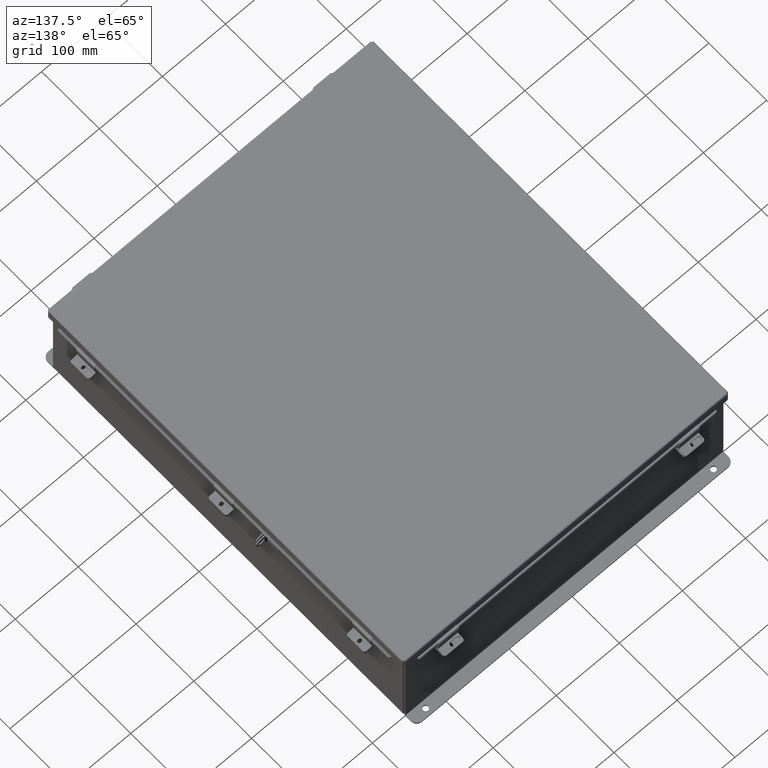
[diagram: clean part render]
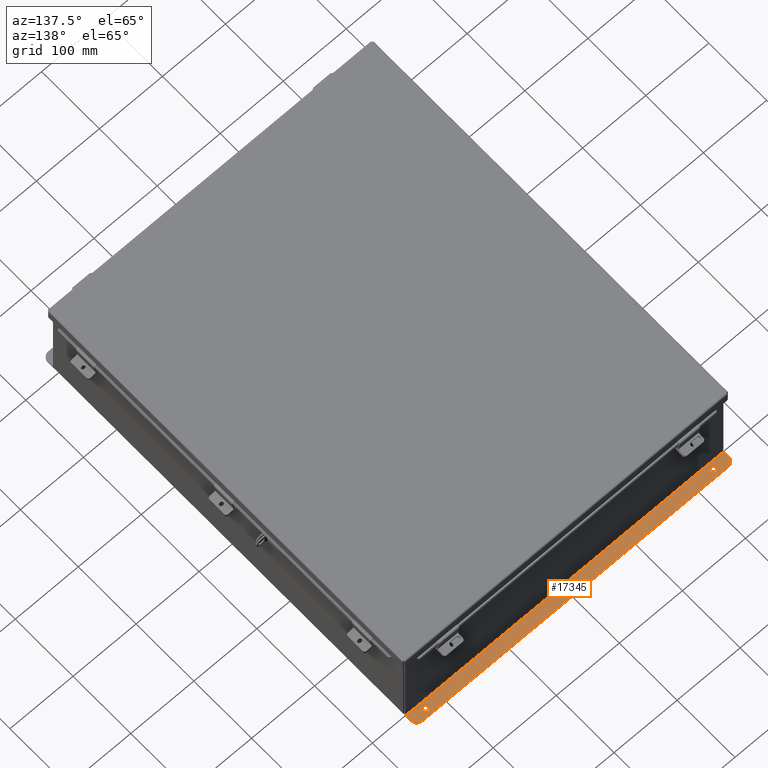
[diagram: same view with one face highlighted and labeled with its STEP entity id]
A machine part, auxiliary view. The second image highlights one B-rep face of the part: STEP entity #17345.
In plain terms, the highlighted planar face has unit normal (0, 0, 1).
Its self-contained STEP definition (entity closure, byte-faithful):
#29 = DIRECTION ( 'NONE',  ( -0.0000000000000000000, -1.000000000000000000, 3.702694488566362300E-015 ) ) ;
#267 = VECTOR ( 'NONE', #8556, 39.37007874015748100 ) ;
#304 = CARTESIAN_POINT ( 'NONE',  ( 0.0000000000000000000, -1.083149218740318000E-014, -3.112299999999999800 ) ) ;
#594 = CARTESIAN_POINT ( 'NONE',  ( 9.550300000000001800, 0.7378000000000002300, -3.112300000000003000 ) ) ;
#963 = EDGE_LOOP ( 'NONE', ( #15132, #16500 ) ) ;
#1044 = DIRECTION ( 'NONE',  ( 0.0000000000000000000, -1.000000000000000000, 3.502369222646487400E-015 ) ) ;
#1162 = CARTESIAN_POINT ( 'NONE',  ( 9.925300000000001800, 0.01300000000000010700, -3.112299999999999800 ) ) ;
#1177 = ORIENTED_EDGE ( 'NONE', *, *, #13309, .F. ) ;
#2182 = DIRECTION ( 'NONE',  ( 0.0000000000000000000, -1.000000000000000000, 3.702694488566362300E-015 ) ) ;
#2387 = DIRECTION ( 'NONE',  ( 0.0000000000000000000, 3.702694488566362300E-015, 1.000000000000000000 ) ) ;
#2641 = VERTEX_POINT ( 'NONE', #10886 ) ;
#2958 = AXIS2_PLACEMENT_3D ( 'NONE', #304, #13291, #2182 ) ;
#3128 = ORIENTED_EDGE ( 'NONE', *, *, #6935, .F. ) ;
#3162 = VERTEX_POINT ( 'NONE', #21683 ) ;
#3485 = CARTESIAN_POINT ( 'NONE',  ( 9.550300000000001800, 0.3628000000000002300, -3.112300000000001200 ) ) ;
#3790 = ORIENTED_EDGE ( 'NONE', *, *, #18469, .F. ) ;
#3795 = ORIENTED_EDGE ( 'NONE', *, *, #14911, .F. ) ;
#4248 = ORIENTED_EDGE ( 'NONE', *, *, #11330, .T. ) ;
#4805 = CARTESIAN_POINT ( 'NONE',  ( -9.925299999999998200, 0.7378000000000002300, -3.112300000000003000 ) ) ;
#4873 = AXIS2_PLACEMENT_3D ( 'NONE', #13488, #2387, #15362 ) ;
#5334 = DIRECTION ( 'NONE',  ( 0.0000000000000000000, -1.000000000000000000, 4.370956789862820400E-015 ) ) ;
#5473 = CARTESIAN_POINT ( 'NONE',  ( -8.987799999999994700, 0.3628000000000001800, -3.112300000000001200 ) ) ;
#5713 = EDGE_CURVE ( 'NONE', #21585, #17981, #19298, .T. ) ;
#5838 = PLANE ( 'NONE',  #2958 ) ;
#6095 = VERTEX_POINT ( 'NONE', #594 ) ;
#6458 = EDGE_CURVE ( 'NONE', #2641, #22316, #14616, .T. ) ;
#6600 = AXIS2_PLACEMENT_3D ( 'NONE', #3485, #16461, #5334 ) ;
#6935 = EDGE_CURVE ( 'NONE', #11510, #6095, #21142, .T. ) ;
#6985 = FACE_BOUND ( 'NONE', #9156, .T. ) ;
#7071 = ORIENTED_EDGE ( 'NONE', *, *, #5713, .T. ) ;
#7330 = DIRECTION ( 'NONE',  ( 0.0000000000000000000, -1.000000000000000000, 3.502369222646487400E-015 ) ) ;
#7673 = CARTESIAN_POINT ( 'NONE',  ( 8.987800000000001800, 0.2067999999999999800, -3.112300000000000700 ) ) ;
#7883 = VERTEX_POINT ( 'NONE', #11292 ) ;
#8163 = CARTESIAN_POINT ( 'NONE',  ( 9.925300000000001800, 0.7378000000000002300, -3.112300000000003000 ) ) ;
#8556 = DIRECTION ( 'NONE',  ( -0.0000000000000000000, 1.000000000000000000, -3.702694488566362300E-015 ) ) ;
#8643 = CARTESIAN_POINT ( 'NONE',  ( 8.987800000000001800, 0.3628000000000001800, -3.112300000000001200 ) ) ;
#8929 = LINE ( 'NONE', #1162, #17626 ) ;
#8999 = CIRCLE ( 'NONE', #9128, 0.1560000000000001700 ) ;
#9128 = AXIS2_PLACEMENT_3D ( 'NONE', #8643, #21643, #10509 ) ;
#9156 = EDGE_LOOP ( 'NONE', ( #7071, #20758 ) ) ;
#9586 = LINE ( 'NONE', #4805, #267 ) ;
#10509 = DIRECTION ( 'NONE',  ( 0.0000000000000000000, -1.000000000000000000, 3.502369222646487400E-015 ) ) ;
#10703 = DIRECTION ( 'NONE',  ( -0.0000000000000000000, -3.702694488566362300E-015, -1.000000000000000000 ) ) ;
#10886 = CARTESIAN_POINT ( 'NONE',  ( -8.987799999999994700, 0.5188000000000003700, -3.112300000000001600 ) ) ;
#11292 = CARTESIAN_POINT ( 'NONE',  ( -9.925299999999998200, 0.3628000000000002900, -3.112300000000001200 ) ) ;
#11330 = EDGE_CURVE ( 'NONE', #11510, #7883, #14846, .T. ) ;
#11510 = VERTEX_POINT ( 'NONE', #15743 ) ;
#12157 = DIRECTION ( 'NONE',  ( -0.0000000000000000000, -3.702694488566362300E-015, -1.000000000000000000 ) ) ;
#12835 = CARTESIAN_POINT ( 'NONE',  ( -9.925299999999996500, 0.01299999999999996600, -3.112299999999999800 ) ) ;
#12992 = CARTESIAN_POINT ( 'NONE',  ( 9.925300000000001800, 1.577762228432578300E-017, -3.112299999999999800 ) ) ;
#13291 = DIRECTION ( 'NONE',  ( 0.0000000000000000000, 3.702694488566362300E-015, 1.000000000000000000 ) ) ;
#13309 = EDGE_CURVE ( 'NONE', #14424, #7883, #9586, .T. ) ;
#13330 = EDGE_CURVE ( 'NONE', #17981, #21585, #8999, .T. ) ;
#13488 = CARTESIAN_POINT ( 'NONE',  ( -9.550299999999998200, 0.3628000000000002900, -3.112300000000001200 ) ) ;
#13644 = CARTESIAN_POINT ( 'NONE',  ( 8.987800000000001800, 0.5188000000000003700, -3.112300000000001600 ) ) ;
#14424 = VERTEX_POINT ( 'NONE', #12835 ) ;
#14616 = CIRCLE ( 'NONE', #14921, 0.1560000000000001700 ) ;
#14846 = CIRCLE ( 'NONE', #4873, 0.3750000000000000600 ) ;
#14911 = EDGE_CURVE ( 'NONE', #18259, #14424, #8929, .T. ) ;
#14921 = AXIS2_PLACEMENT_3D ( 'NONE', #5473, #18453, #7330 ) ;
#15132 = ORIENTED_EDGE ( 'NONE', *, *, #6458, .T. ) ;
#15362 = DIRECTION ( 'NONE',  ( 0.0000000000000000000, -1.000000000000000000, 4.370956789862820400E-015 ) ) ;
#15498 = EDGE_CURVE ( 'NONE', #22316, #2641, #15830, .T. ) ;
#15645 = CARTESIAN_POINT ( 'NONE',  ( -8.987799999999994700, 0.2067999999999999800, -3.112300000000000700 ) ) ;
#15743 = CARTESIAN_POINT ( 'NONE',  ( -9.550299999999998200, 0.7378000000000002300, -3.112300000000003000 ) ) ;
#15823 = CIRCLE ( 'NONE', #6600, 0.3750000000000000600 ) ;
#15830 = CIRCLE ( 'NONE', #18987, 0.1560000000000001700 ) ;
#16180 = VECTOR ( 'NONE', #21163, 39.37007874015748100 ) ;
#16256 = FACE_OUTER_BOUND ( 'NONE', #17763, .T. ) ;
#16461 = DIRECTION ( 'NONE',  ( 0.0000000000000000000, 3.702694488566362300E-015, 1.000000000000000000 ) ) ;
#16489 = LINE ( 'NONE', #12992, #21467 ) ;
#16500 = ORIENTED_EDGE ( 'NONE', *, *, #15498, .T. ) ;
#17345 = ADVANCED_FACE ( 'NONE', ( #21211, #6985, #16256 ), #5838, .T. ) ;
#17626 = VECTOR ( 'NONE', #23329, 39.37007874015748100 ) ;
#17763 = EDGE_LOOP ( 'NONE', ( #3790, #18818, #3128, #4248, #1177, #3795 ) ) ;
#17969 = CARTESIAN_POINT ( 'NONE',  ( 9.925300000000001800, 0.01299999999999996600, -3.112299999999999800 ) ) ;
#17981 = VERTEX_POINT ( 'NONE', #7673 ) ;
#18259 = VERTEX_POINT ( 'NONE', #17969 ) ;
#18453 = DIRECTION ( 'NONE',  ( -0.0000000000000000000, -3.702694488566362300E-015, -1.000000000000000000 ) ) ;
#18469 = EDGE_CURVE ( 'NONE', #3162, #18259, #16489, .T. ) ;
#18818 = ORIENTED_EDGE ( 'NONE', *, *, #20684, .T. ) ;
#18987 = AXIS2_PLACEMENT_3D ( 'NONE', #23303, #12157, #1044 ) ;
#19298 = CIRCLE ( 'NONE', #20059, 0.1560000000000001700 ) ;
#20059 = AXIS2_PLACEMENT_3D ( 'NONE', #21837, #10703, #23695 ) ;
#20684 = EDGE_CURVE ( 'NONE', #3162, #6095, #15823, .T. ) ;
#20758 = ORIENTED_EDGE ( 'NONE', *, *, #13330, .T. ) ;
#21142 = LINE ( 'NONE', #8163, #16180 ) ;
#21163 = DIRECTION ( 'NONE',  ( 1.000000000000000000, -0.0000000000000000000, -0.0000000000000000000 ) ) ;
#21211 = FACE_BOUND ( 'NONE', #963, .T. ) ;
#21467 = VECTOR ( 'NONE', #29, 39.37007874015748100 ) ;
#21585 = VERTEX_POINT ( 'NONE', #13644 ) ;
#21643 = DIRECTION ( 'NONE',  ( -0.0000000000000000000, -3.702694488566362300E-015, -1.000000000000000000 ) ) ;
#21683 = CARTESIAN_POINT ( 'NONE',  ( 9.925300000000001800, 0.3628000000000002300, -3.112300000000001200 ) ) ;
#21837 = CARTESIAN_POINT ( 'NONE',  ( 8.987800000000001800, 0.3628000000000001800, -3.112300000000001200 ) ) ;
#22316 = VERTEX_POINT ( 'NONE', #15645 ) ;
#23303 = CARTESIAN_POINT ( 'NONE',  ( -8.987799999999994700, 0.3628000000000001800, -3.112300000000001200 ) ) ;
#23329 = DIRECTION ( 'NONE',  ( -1.000000000000000000, 0.0000000000000000000, 0.0000000000000000000 ) ) ;
#23695 = DIRECTION ( 'NONE',  ( 0.0000000000000000000, -1.000000000000000000, 3.502369222646487400E-015 ) ) ;